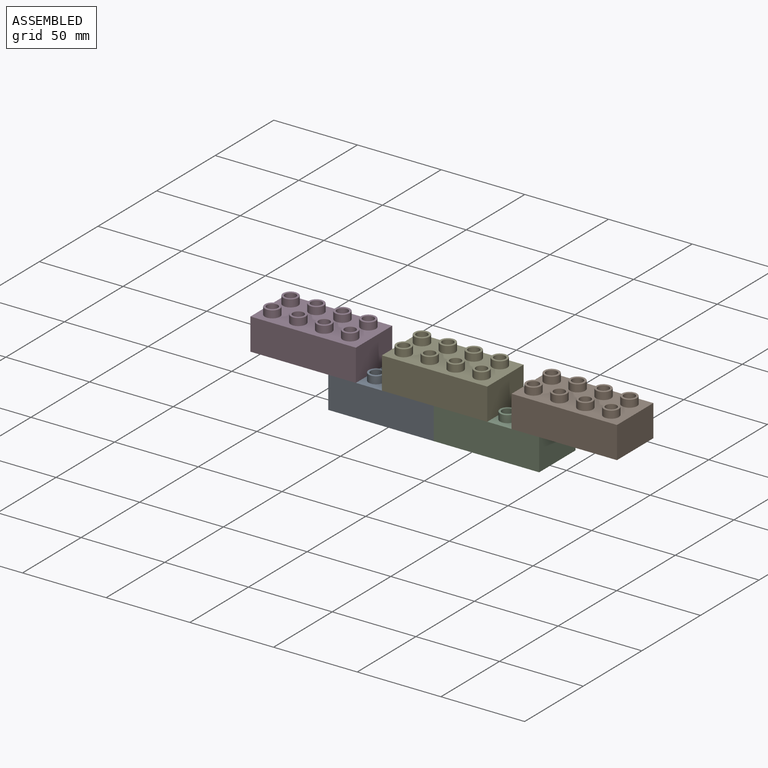
[diagram: assembled view]
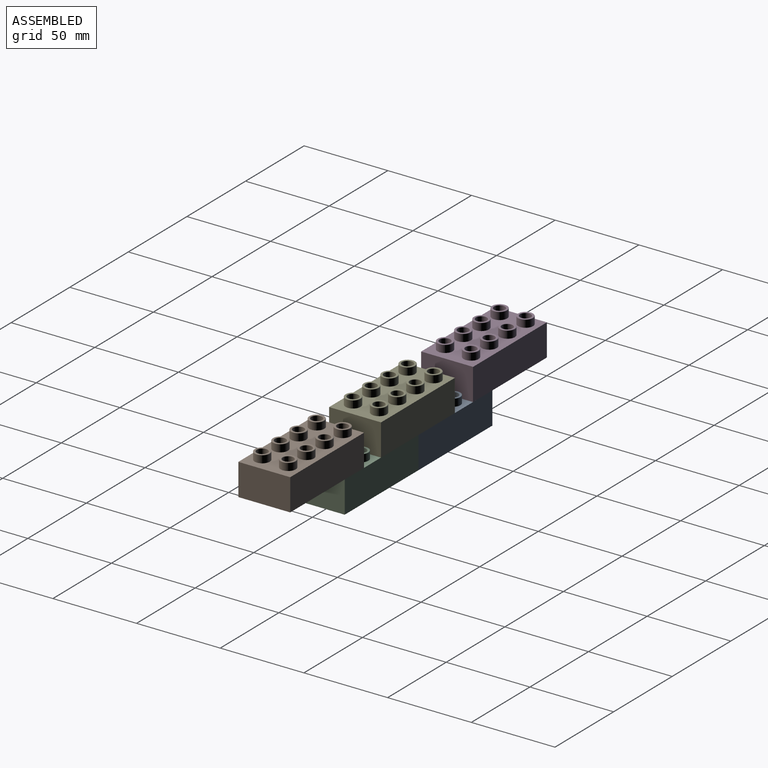
[diagram: assembled view, second angle]
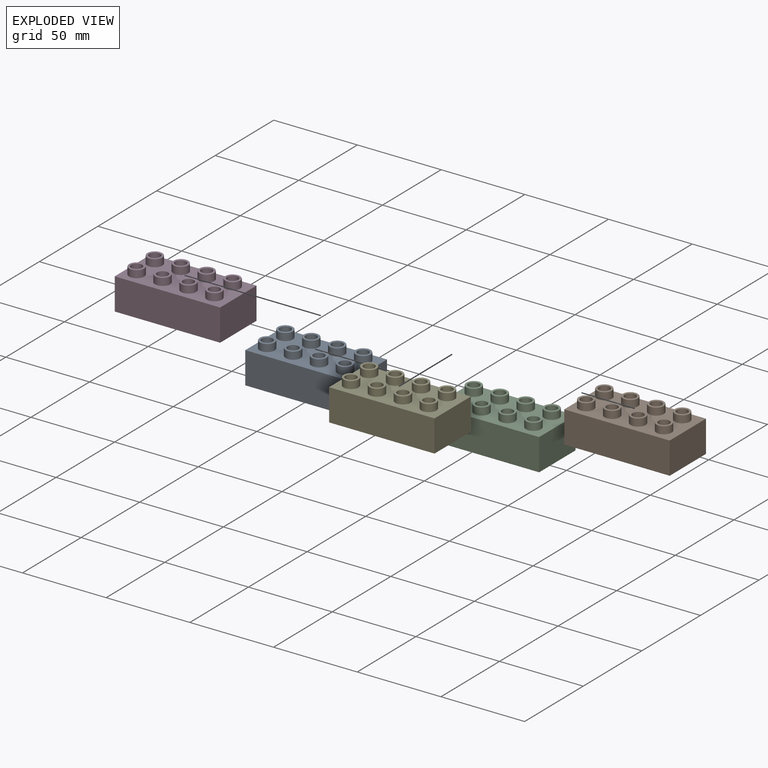
[diagram: exploded view]
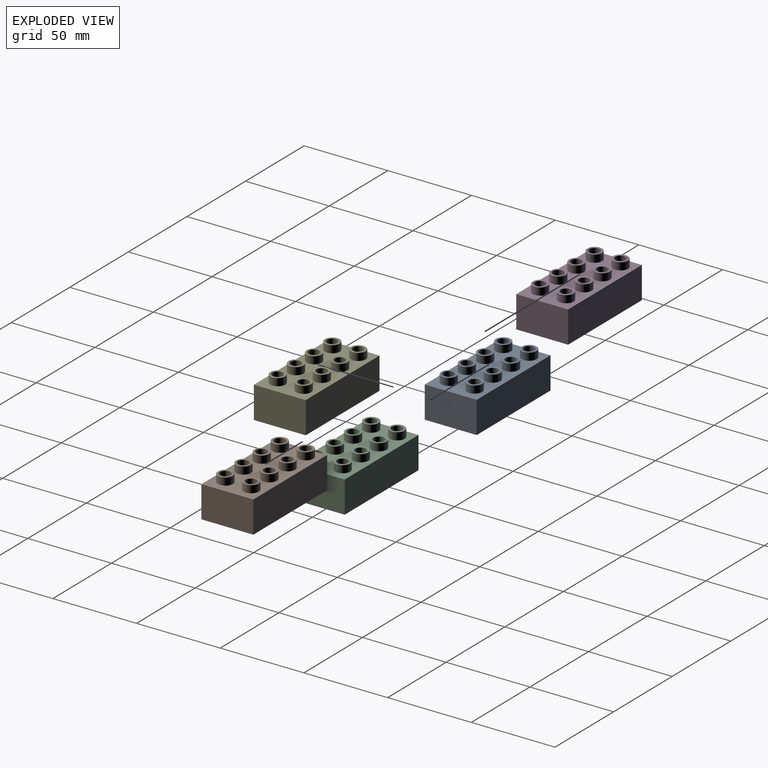
[diagram: exploded view, second angle]
ASSEMBLY  parts=5 mates=7
PART A: 71 faces, bbox 63x31x23.5 mm
  f0: plane 63x31mm, normal (0,0,-1), area 219.8mm2, adj f1,f2,f3,f4,f54,f55,f56,f57
  f1: plane 63x19mm, normal (0,-1,0), area 1197mm2, adj f0,f2,f4,f5
  f2: plane 31x19mm, normal (1,0,0), area 589mm2, adj f0,f1,f3,f5
  f3: plane 63x19mm, normal (0,1,0), area 1197mm2, adj f0,f2,f4,f5
  f4: plane 31x19mm, normal (-1,0,0), area 589mm2, adj f0,f1,f3,f5
  f5: plane 63x31mm, normal (0,0,1), area 1444.1mm2, adj f1,f2,f3,f4,f6,f12,f18,f24
  f6: cylinder r=4.5mm len=9mm, axis (0,0,-1), area 121.6mm2, adj f5,f10
  f7: plane 8.6x8.6mm, normal (0,0,1), area 20.7mm2, adj f10,f11
  f8: cylinder r=3.25mm len=6.5mm, axis (0,0,1), area 87.8mm2, adj f9,f11
  f9: plane 6.5x6.5mm, normal (0,0,1), area 33.2mm2, adj f8
  f10: torus R=4.3mm, axis (0,0,1), area 8.7mm2, adj f6,f7
  f11: torus R=3.45mm, axis (0,0,1), area 6.6mm2, adj f7,f8
  f12: cylinder r=4.5mm len=9mm, axis (0,0,-1), area 121.6mm2, adj f5,f16
  f13: plane 8.6x8.6mm, normal (0,0,1), area 20.7mm2, adj f16,f17
  f14: cylinder r=3.25mm len=6.5mm, axis (0,0,1), area 87.8mm2, adj f15,f17
  f15: plane 6.5x6.5mm, normal (0,0,1), area 33.2mm2, adj f14
  f16: torus R=4.3mm, axis (0,0,1), area 8.7mm2, adj f12,f13
  f17: torus R=3.45mm, axis (0,0,1), area 6.6mm2, adj f13,f14
  f18: cylinder r=4.5mm len=9mm, axis (0,0,-1), area 121.6mm2, adj f5,f22
  f19: plane 8.6x8.6mm, normal (0,0,1), area 20.7mm2, adj f22,f23
  f20: cylinder r=3.25mm len=6.5mm, axis (0,0,1), area 87.8mm2, adj f21,f23
  f21: plane 6.5x6.5mm, normal (0,0,1), area 33.2mm2, adj f20
  f22: torus R=4.3mm, axis (0,0,1), area 8.7mm2, adj f18,f19
  f23: torus R=3.45mm, axis (0,0,1), area 6.6mm2, adj f19,f20
  f24: cylinder r=4.5mm len=9mm, axis (0,0,-1), area 121.6mm2, adj f5,f28
  f25: plane 8.6x8.6mm, normal (0,0,1), area 20.7mm2, adj f28,f29
  f26: cylinder r=3.25mm len=6.5mm, axis (0,0,1), area 87.8mm2, adj f27,f29
  f27: plane 6.5x6.5mm, normal (0,0,1), area 33.2mm2, adj f26
  f28: torus R=4.3mm, axis (0,0,1), area 8.7mm2, adj f24,f25
  f29: torus R=3.45mm, axis (0,0,1), area 6.6mm2, adj f25,f26
  f30: cylinder r=4.5mm len=9mm, axis (0,0,-1), area 121.6mm2, adj f5,f34
  f31: plane 8.6x8.6mm, normal (0,0,1), area 20.7mm2, adj f34,f35
  f32: cylinder r=3.25mm len=6.5mm, axis (0,0,1), area 87.8mm2, adj f33,f35
  f33: plane 6.5x6.5mm, normal (0,0,1), area 33.2mm2, adj f32
  f34: torus R=4.3mm, axis (0,0,1), area 8.7mm2, adj f30,f31
  f35: torus R=3.45mm, axis (0,0,1), area 6.6mm2, adj f31,f32
  f36: cylinder r=4.5mm len=9mm, axis (0,0,-1), area 121.6mm2, adj f5,f40
  f37: plane 8.6x8.6mm, normal (0,0,1), area 20.7mm2, adj f40,f41
  f38: cylinder r=3.25mm len=6.5mm, axis (0,0,1), area 87.8mm2, adj f39,f41
  f39: plane 6.5x6.5mm, normal (0,0,1), area 33.2mm2, adj f38
  f40: torus R=4.3mm, axis (0,0,1), area 8.7mm2, adj f36,f37
  f41: torus R=3.45mm, axis (0,0,1), area 6.6mm2, adj f37,f38
  f42: cylinder r=4.5mm len=9mm, axis (0,0,-1), area 121.6mm2, adj f5,f46
  f43: plane 8.6x8.6mm, normal (0,0,1), area 20.7mm2, adj f46,f47
  f44: cylinder r=3.25mm len=6.5mm, axis (0,0,1), area 87.8mm2, adj f45,f47
  f45: plane 6.5x6.5mm, normal (0,0,1), area 33.2mm2, adj f44
  f46: torus R=4.3mm, axis (0,0,1), area 8.7mm2, adj f42,f43
  f47: torus R=3.45mm, axis (0,0,1), area 6.6mm2, adj f43,f44
  f48: cylinder r=4.5mm len=9mm, axis (0,0,-1), area 121.6mm2, adj f5,f52
  f49: plane 8.6x8.6mm, normal (0,0,1), area 20.7mm2, adj f52,f53
  f50: cylinder r=3.25mm len=6.5mm, axis (0,0,1), area 87.8mm2, adj f51,f53
  f51: plane 6.5x6.5mm, normal (0,0,1), area 33.2mm2, adj f50
  f52: torus R=4.3mm, axis (0,0,1), area 8.7mm2, adj f48,f49
  f53: torus R=3.45mm, axis (0,0,1), area 6.6mm2, adj f49,f50
  f54: plane 60.6x17.8mm, normal (0,1,0), area 1078.7mm2, adj f0,f55,f57,f58
  f55: plane 28.6x17.8mm, normal (-1,0,0), area 509.1mm2, adj f0,f54,f56,f58
  f56: plane 60.6x17.8mm, normal (0,-1,0), area 1078.7mm2, adj f0,f55,f57,f58
  f57: plane 28.6x17.8mm, normal (1,0,0), area 509.1mm2, adj f0,f54,f56,f58
  f58: plane 60.6x28.6mm, normal (0,0,-1), area 1335mm2, adj f54,f55,f56,f57,f59,f61,f65
  f59: cylinder r=6.5mm len=16mm, axis (0,0,1), area 653.5mm2, adj f58,f60
  f60: plane 13x13mm, normal (0,0,-1), area 37.7mm2, adj f59,f69
  f61: cylinder r=6.5mm len=16mm, axis (0,0,1), area 653.5mm2, adj f58,f62
  f62: plane 13x13mm, normal (0,0,-1), area 37.7mm2, adj f61,f63
  f63: cylinder r=5.5mm len=16mm, axis (0,0,-1), area 552.9mm2, adj f62,f64
  f64: plane 11x11mm, normal (0,0,-1), area 95mm2, adj f63
  f65: cylinder r=6.5mm len=16mm, axis (0,0,1), area 653.5mm2, adj f58,f66
  f66: plane 13x13mm, normal (0,0,-1), area 37.7mm2, adj f65,f67
  f67: cylinder r=5.5mm len=16mm, axis (0,0,-1), area 552.9mm2, adj f66,f68
  f68: plane 11x11mm, normal (0,0,-1), area 95mm2, adj f67
  f69: cylinder r=5.5mm len=16mm, axis (0,0,-1), area 552.9mm2, adj f60,f70
  f70: plane 11x11mm, normal (0,0,-1), area 95mm2, adj f69
PART B: same geometry as A
PART C: same geometry as A
PART D: same geometry as A
PART E: same geometry as A
PLACE A t=(0,0,7.7)mm
PLACE B t=(109.5,0,26.7)mm
PLACE C t=(63,0,7.7)mm
PLACE D t=(-46.5,0,26.7)mm
PLACE E t=(32,0,26.7)mm
MATE planar A.f48 <-> E.f0  axis (0,0,1) through (22.5,-7.5,17.2)mm
MATE planar C.f42 <-> B.f0  axis (0,0,1) through (85.5,8,17.2)mm
MATE fastened C.f4 <-> A.f2  axis (-1,0,0) through (31.5,0,7.7)mm
MATE planar A.f12 <-> D.f0  axis (0,0,1) through (-24,-7.5,17.2)mm
MATE slider C.f42 <-> B.f6  axis (0,0,1) through (85.5,8,21.7)mm
MATE slider E.f36 <-> C.f12  axis (0,0,1) through (39,-7.5,36.2)mm
MATE slider A.f12 <-> D.f48  axis (0,0,1) through (-24,-7.5,21.7)mm
